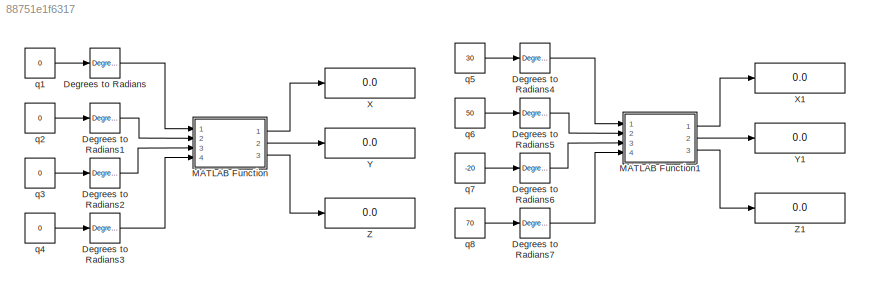
MODEL slx_88751e1f6317
KIND model
CONFIG AbsTol = auto
CONFIG EnableMultiTasking = off
CONFIG FixedStep = auto
CONFIG MaxStep = auto
CONFIG MinStep = auto
CONFIG RelTol = 1e-3
CONFIG SampleTimeConstraint = Unconstrained
CONFIG SolverName = VariableStepAuto
CONFIG StartTime = 0.0
CONFIG StopTime = 10.0
BLOCK [Reference] Degrees to Radians  REF=simulink_extras/Transformations/Degrees to
Radians
  Ports = [1, 1]
  SourceBlock = simulink_extras/Transformations/Degrees to\nRadians
  SourceProductBaseCode = SL
  SourceType = DegreesToRadians
BLOCK [Reference] Degrees to Radians1  REF=simulink_extras/Transformations/Degrees to
Radians
  Ports = [1, 1]
  SourceBlock = simulink_extras/Transformations/Degrees to\nRadians
  SourceProductBaseCode = SL
  SourceType = DegreesToRadians
BLOCK [Reference] Degrees to Radians2  REF=simulink_extras/Transformations/Degrees to
Radians
  Ports = [1, 1]
  SourceBlock = simulink_extras/Transformations/Degrees to\nRadians
  SourceProductBaseCode = SL
  SourceType = DegreesToRadians
BLOCK [Reference] Degrees to Radians3  REF=simulink_extras/Transformations/Degrees to
Radians
  Ports = [1, 1]
  SourceBlock = simulink_extras/Transformations/Degrees to\nRadians
  SourceProductBaseCode = SL
  SourceType = DegreesToRadians
BLOCK [Reference] Degrees to Radians4  REF=simulink_extras/Transformations/Degrees to
Radians
  Ports = [1, 1]
  SourceBlock = simulink_extras/Transformations/Degrees to\nRadians
  SourceProductBaseCode = SL
  SourceType = DegreesToRadians
BLOCK [Reference] Degrees to Radians5  REF=simulink_extras/Transformations/Degrees to
Radians
  Ports = [1, 1]
  SourceBlock = simulink_extras/Transformations/Degrees to\nRadians
  SourceProductBaseCode = SL
  SourceType = DegreesToRadians
BLOCK [Reference] Degrees to Radians6  REF=simulink_extras/Transformations/Degrees to
Radians
  Ports = [1, 1]
  SourceBlock = simulink_extras/Transformations/Degrees to\nRadians
  SourceProductBaseCode = SL
  SourceType = DegreesToRadians
BLOCK [Reference] Degrees to Radians7  REF=simulink_extras/Transformations/Degrees to
Radians
  Ports = [1, 1]
  SourceBlock = simulink_extras/Transformations/Degrees to\nRadians
  SourceProductBaseCode = SL
  SourceType = DegreesToRadians
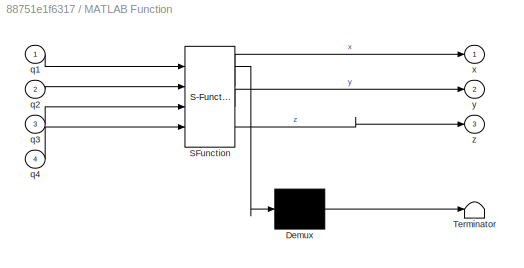
BLOCK [SubSystem] MATLAB Function
  ErrorFcn = Stateflow.Translate.translate
  PermitHierarchicalResolution = ExplicitOnly
  Ports = [4, 3]
  RequestExecContextInheritance = off
  SFBlockType = MATLAB Function
  TreatAsAtomicUnit = on
BLOCK [Demux] MATLAB Function/ Demux 
  Outputs = 1
  Ports = [1, 1]
BLOCK [S-Function] MATLAB Function/ SFunction 
  EnableBusSupport = on
  FunctionName = sf_sfun
  PortCounts = [4 4]
  Ports = [4, 4]
  SFcnIsStateOwnerBlock = off
  SFunctionDeploymentMode = off
  Tag = Stateflow S-Function 2
BLOCK [Terminator] MATLAB Function/ Terminator 
BLOCK [Inport] MATLAB Function/q1
BLOCK [Inport] MATLAB Function/q2
  Port = 2
BLOCK [Inport] MATLAB Function/q3
  Port = 3
BLOCK [Inport] MATLAB Function/q4
  Port = 4
BLOCK [Outport] MATLAB Function/x
BLOCK [Outport] MATLAB Function/y
  Port = 2
BLOCK [Outport] MATLAB Function/z
  Port = 3
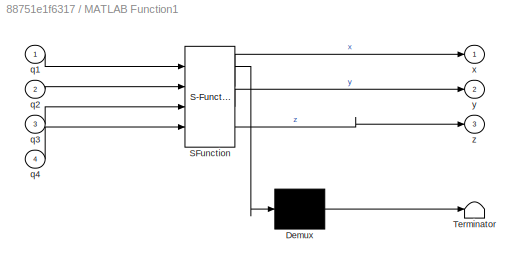
BLOCK [SubSystem] MATLAB Function1
  ErrorFcn = Stateflow.Translate.translate
  PermitHierarchicalResolution = ExplicitOnly
  Ports = [4, 3]
  RequestExecContextInheritance = off
  SFBlockType = MATLAB Function
  TreatAsAtomicUnit = on
BLOCK [Demux] MATLAB Function1/ Demux 
  Outputs = 1
  Ports = [1, 1]
BLOCK [S-Function] MATLAB Function1/ SFunction 
  EnableBusSupport = on
  FunctionName = sf_sfun
  PortCounts = [4 4]
  Ports = [4, 4]
  SFcnIsStateOwnerBlock = off
  SFunctionDeploymentMode = off
  Tag = Stateflow S-Function 1
BLOCK [Terminator] MATLAB Function1/ Terminator 
BLOCK [Inport] MATLAB Function1/q1
BLOCK [Inport] MATLAB Function1/q2
  Port = 2
BLOCK [Inport] MATLAB Function1/q3
  Port = 3
BLOCK [Inport] MATLAB Function1/q4
  Port = 4
BLOCK [Outport] MATLAB Function1/x
BLOCK [Outport] MATLAB Function1/y
  Port = 2
BLOCK [Outport] MATLAB Function1/z
  Port = 3
BLOCK [Display] X
  Decimation = 1
  Ports = [1]
BLOCK [Display] X1
  Decimation = 1
  Ports = [1]
BLOCK [Display] Y
  Decimation = 1
  Ports = [1]
BLOCK [Display] Y1
  Decimation = 1
  Ports = [1]
BLOCK [Display] Z
  Decimation = 1
  Ports = [1]
BLOCK [Display] Z1
  Decimation = 1
  Ports = [1]
BLOCK [Constant] q1
  Value = 0
BLOCK [Constant] q2
  Value = 0
BLOCK [Constant] q3
  Value = 0
BLOCK [Constant] q4
  Value = 0
BLOCK [Constant] q5
  Value = 30
BLOCK [Constant] q6
  Value = 50
BLOCK [Constant] q7
  Value = -20
BLOCK [Constant] q8
  Value = 70
LINE Degrees to Radians1:1 -> MATLAB Function:2
LINE Degrees to Radians2:1 -> MATLAB Function:3
LINE Degrees to Radians3:1 -> MATLAB Function:4
LINE Degrees to Radians4:1 -> MATLAB Function1:1
LINE Degrees to Radians5:1 -> MATLAB Function1:2
LINE Degrees to Radians6:1 -> MATLAB Function1:3
LINE Degrees to Radians7:1 -> MATLAB Function1:4
LINE Degrees to Radians:1 -> MATLAB Function:1
LINE MATLAB Function1:1 -> X1:1
LINE MATLAB Function1:2 -> Y1:1
LINE MATLAB Function1:3 -> Z1:1
LINE MATLAB Function:1 -> X:1
LINE MATLAB Function:2 -> Y:1
LINE MATLAB Function:3 -> Z:1
LINE q1:1 -> Degrees to Radians:1
LINE q2:1 -> Degrees to Radians1:1
LINE q3:1 -> Degrees to Radians2:1
LINE q4:1 -> Degrees to Radians3:1
LINE q5:1 -> Degrees to Radians4:1
LINE q6:1 -> Degrees to Radians5:1
LINE q7:1 -> Degrees to Radians6:1
LINE q8:1 -> Degrees to Radians7:1
CHART MATLAB Function1 states=1 transitions=1
  STATE_LABEL 'eML_blk_kernel()'
  STATE_LABEL 'SCRIPT:\nfunction [x,y,z] = fcn(q1,q2,q3,q4)\nx = 24.63*sin(q1) - 5.6e-17*cos(q3)*(3.25e+18*cos(q2 + 1.571)*cos(q1)...\n    - 199.0*sin(q2 + 1.571)*sin(q1)) + 5.6e-17*sin(q3)*(199.0*cos(q2 + 1.571)*sin(q1)...\n    + 3.25e+18*sin(q2 + 1.571)*cos(q1)) - 2.0e-19*cos(q4 - 1.233)*...\n    (2.637e+20*cos(q2 - 1.0*q1 + q3 + 1.571) + 2.637e+20*cos(q1 + q2 + q3 + 1.571))...\n    + 2.0e-19*sin(q4 - 1.233)*(2.637e...<+760ch>'
CHART MATLAB Function states=1 transitions=1
  STATE_LABEL 'eML_blk_kernel()'
  STATE_LABEL 'SCRIPT:\nfunction [x,y,z] = fcn(q1,q2,q3,q4)\nx = 24.63*sin(q1) - 5.6e-17*cos(q3)*(3.25e+18*cos(q2 + 1.571)*cos(q1)...\n    - 199.0*sin(q2 + 1.571)*sin(q1)) + 5.6e-17*sin(q3)*(199.0*cos(q2 + 1.571)*sin(q1)...\n    + 3.25e+18*sin(q2 + 1.571)*cos(q1)) - 2.0e-19*cos(q4 - 1.233)*...\n    (2.637e+20*cos(q2 - 1.0*q1 + q3 + 1.571) + 2.637e+20*cos(q1 + q2 + q3 + 1.571))...\n    + 2.0e-19*sin(q4 - 1.233)*(2.637e...<+760ch>'
CHART  states=0 transitions=0
CHART  states=0 transitions=0
